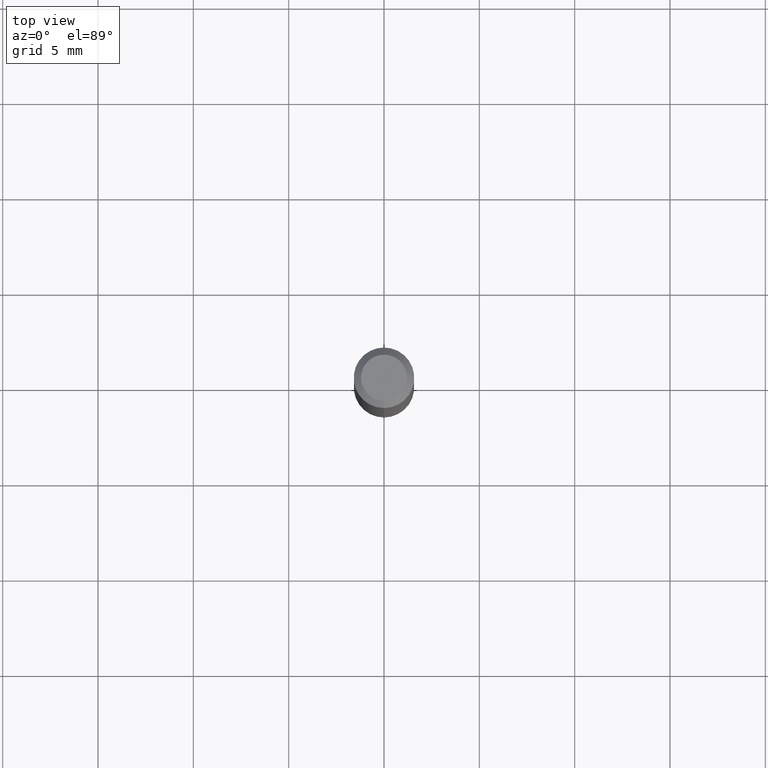
[diagram: clean part render]
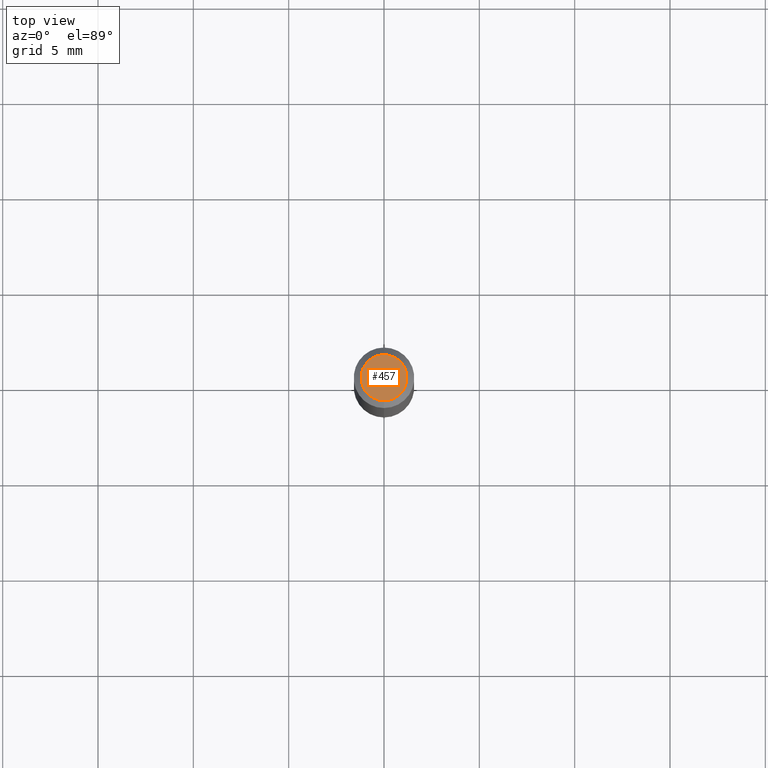
[diagram: same view with one face highlighted and labeled with its STEP entity id]
A machine part, top view. The second image highlights one B-rep face of the part: STEP entity #457.
In plain terms, the highlighted planar face has unit normal (0, -0, -1).
Its self-contained STEP definition (entity closure, byte-faithful):
#8 = CIRCLE ( 'NONE', #289, 0.04749999999999999362 ) ;
#9 = DIRECTION ( 'NONE',  ( -6.982962677686266711E-15, -1.000000000000000000, 3.491921625732121546E-15 ) ) ;
#14 = CARTESIAN_POINT ( 'NONE',  ( 3.840629472727447874E-16, 0.04749999999999999362, -1.747056831868805136E-16 ) ) ;
#56 = CIRCLE ( 'NONE', #503, 0.04749999999999999362 ) ;
#61 = FACE_OUTER_BOUND ( 'NONE', #473, .T. ) ;
#64 = DIRECTION ( 'NONE',  ( -6.982962677686266711E-15, -1.000000000000000000, 3.491921625732121546E-15 ) ) ;
#87 = AXIS2_PLACEMENT_3D ( 'NONE', #290, #464, #101 ) ;
#101 = DIRECTION ( 'NONE',  ( 6.982962677686265922E-15, 1.000000000000000000, -3.491921625732120363E-15 ) ) ;
#122 = VERTEX_POINT ( 'NONE', #14 ) ;
#134 = PLANE ( 'NONE',  #87 ) ;
#156 = CARTESIAN_POINT ( 'NONE',  ( 2.161377387017317950E-46, -3.086651284642894233E-32, -8.839405964604785983E-18 ) ) ;
#220 = CARTESIAN_POINT ( 'NONE',  ( -3.773273898774340269E-16, -0.04749999999999999362, 1.570268712576709386E-16 ) ) ;
#245 = EDGE_CURVE ( 'NONE', #122, #484, #8, .T. ) ;
#267 = ORIENTED_EDGE ( 'NONE', *, *, #476, .T. ) ;
#289 = AXIS2_PLACEMENT_3D ( 'NONE', #156, #313, #9 ) ;
#290 = CARTESIAN_POINT ( 'NONE',  ( 3.316907271900976096E-16, 0.04749999999999999362, -1.702859802045781199E-16 ) ) ;
#313 = DIRECTION ( 'NONE',  ( -2.445161355493817803E-29, 3.491921625732120757E-15, 1.000000000000000000 ) ) ;
#355 = ORIENTED_EDGE ( 'NONE', *, *, #245, .T. ) ;
#422 = DIRECTION ( 'NONE',  ( -2.445161355493817803E-29, 3.491921625732120757E-15, 1.000000000000000000 ) ) ;
#426 = CARTESIAN_POINT ( 'NONE',  ( 2.161377387017317950E-46, -3.086651284642894233E-32, -8.839405964604785983E-18 ) ) ;
#457 = ADVANCED_FACE ( 'NONE', ( #61 ), #134, .F. ) ;
#464 = DIRECTION ( 'NONE',  ( 2.445161355493817803E-29, -3.491921625732120363E-15, -1.000000000000000000 ) ) ;
#473 = EDGE_LOOP ( 'NONE', ( #355, #267 ) ) ;
#476 = EDGE_CURVE ( 'NONE', #484, #122, #56, .T. ) ;
#484 = VERTEX_POINT ( 'NONE', #220 ) ;
#503 = AXIS2_PLACEMENT_3D ( 'NONE', #426, #422, #64 ) ;